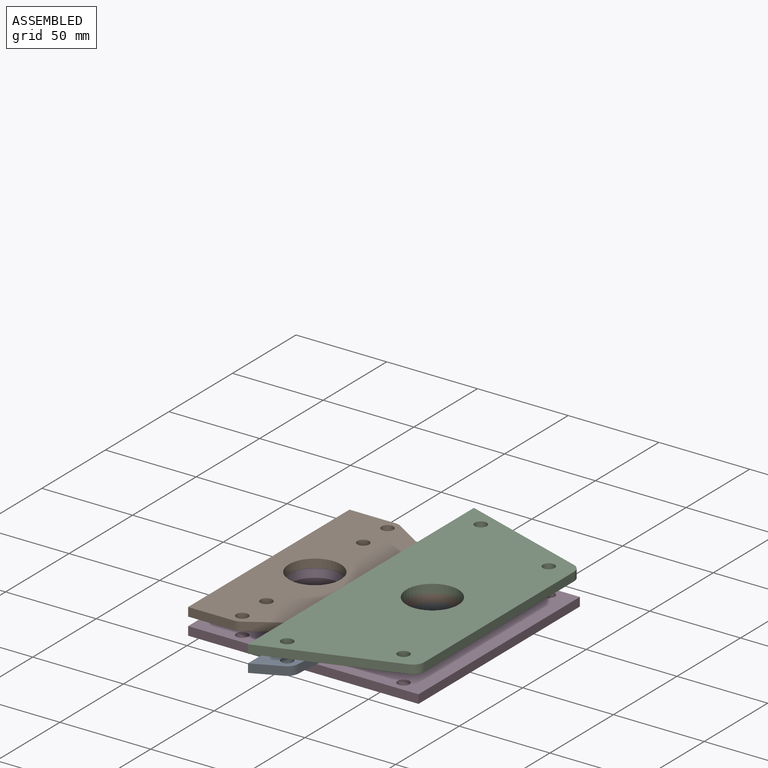
[diagram: assembled view]
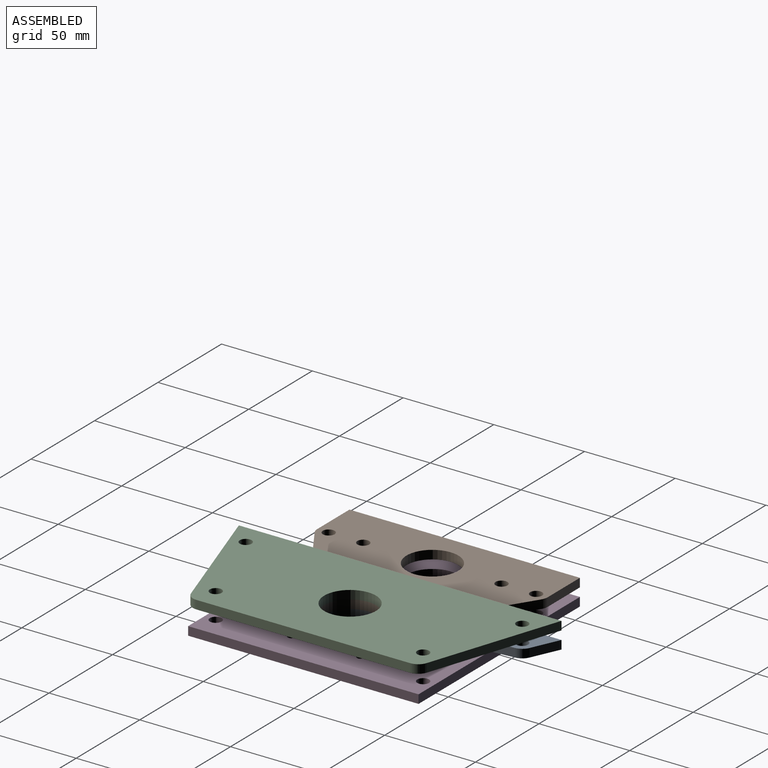
[diagram: assembled view, second angle]
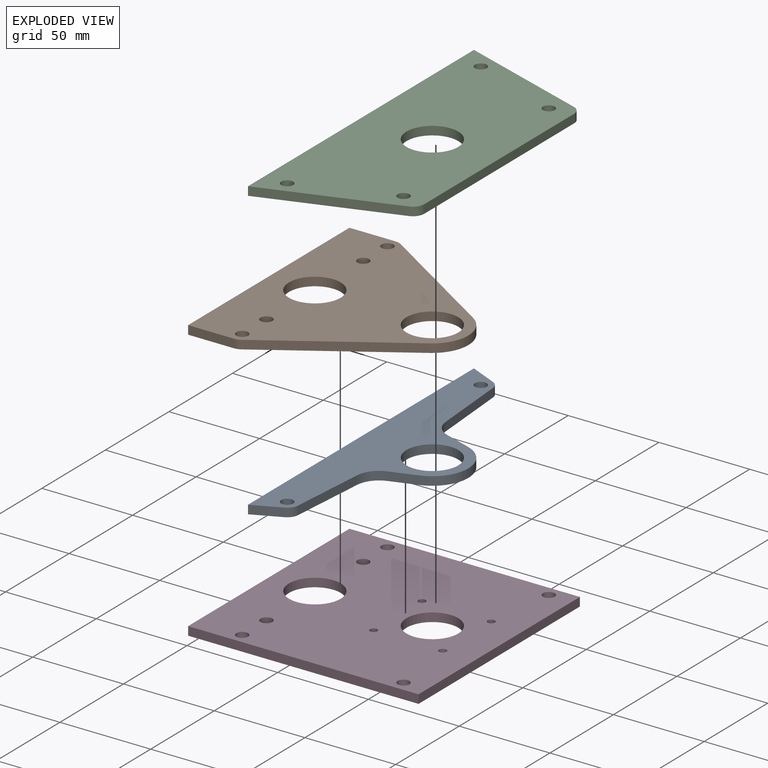
[diagram: exploded view]
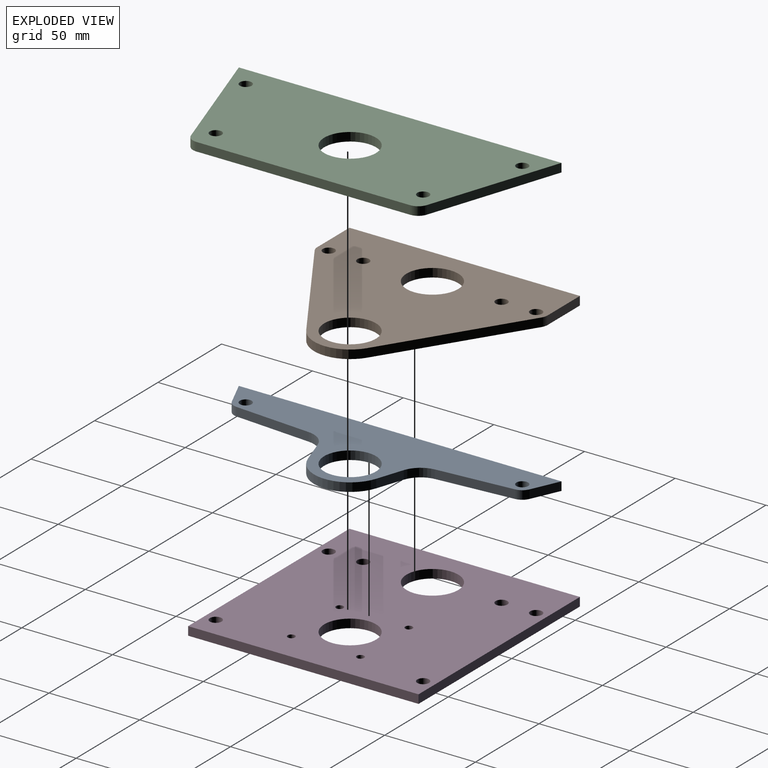
[diagram: exploded view, second angle]
ASSEMBLY  parts=4 mates=3
PART A: 17 faces, bbox 59.2x177.8x4.8 mm
  f0: plane 177.8x59.21mm, normal (0,0,1), area 4337.7mm2, adj f2,f3,f4,f5,f6,f7,f8,f9
  f1: plane 177.8x59.21mm, normal (0,0,-1), area 4337.7mm2, adj f2,f3,f4,f5,f6,f7,f8,f9
  f2: plane 177.8x4.76mm, normal (-1,0,0), area 846.8mm2, adj f0,f1,f6,f7
  f3: cylinder r=14.29mm len=28.58mm, axis (0,0,-1), area 427.5mm2, adj f0,f1
  f4: cylinder r=3.26mm len=6.53mm, axis (0,0,-1), area 97.7mm2, adj f0,f1
  f5: cylinder r=3.26mm len=6.53mm, axis (0,0,-1), area 97.7mm2, adj f0,f1
  f6: plane 15.31x6.91mm, normal (0.41,-0.91,0), area 80mm2, adj f0,f1,f2,f16
  f7: plane 15.31x6.91mm, normal (0.41,0.91,0), area 80mm2, adj f0,f1,f2,f8
  f8: cylinder r=6.35mm len=5.29mm, axis (0,0,1), area 32.3mm2, adj f0,f1,f7,f9
  f9: plane 41.94x4.76mm, normal (1,0.08,0), area 200.3mm2, adj f0,f1,f8,f10
  f10: cylinder r=12.7mm len=11.05mm, axis (0,0,1), area 70.8mm2, adj f0,f1,f9,f11
  f11: plane 14.66x4.89mm, normal (0.32,0.95,0), area 73.6mm2, adj f0,f1,f10,f12
  f12: cylinder r=19.84mm len=37.65mm, axis (0,0,1), area 236.1mm2, adj f0,f1,f11,f13
  f13: plane 14.66x4.89mm, normal (0.32,-0.95,0), area 73.6mm2, adj f0,f1,f12,f14
  f14: cylinder r=12.7mm len=11.05mm, axis (0,0,1), area 70.8mm2, adj f0,f1,f13,f15
  f15: plane 41.44x4.76mm, normal (1,-0.08,0), area 198mm2, adj f0,f1,f14,f16
  f16: cylinder r=6.38mm len=5.79mm, axis (0,0,1), area 34.7mm2, adj f0,f1,f6,f15
PART B: 16 faces, bbox 110x127x4.8 mm
  f0: plane 127x110.01mm, normal (0,0,1), area 8164.2mm2, adj f2,f3,f4,f5,f6,f7,f8,f9
  f1: plane 127x110.01mm, normal (0,0,-1), area 8164.2mm2, adj f2,f3,f4,f5,f6,f7,f8,f9
  f2: plane 127x4.76mm, normal (-1,0,0), area 604.8mm2, adj f0,f1,f3,f9
  f3: plane 25.4x4.76mm, normal (0,-1,0), area 121mm2, adj f0,f1,f2,f15
  f4: cylinder r=3.26mm len=6.53mm, axis (0,0,-1), area 97.7mm2, adj f0,f1
  f5: cylinder r=14.29mm len=28.58mm, axis (0,0,-1), area 427.5mm2, adj f0,f1
  f6: cylinder r=14.29mm len=28.58mm, axis (0,0,-1), area 427.5mm2, adj f0,f1
  f7: cylinder r=3.26mm len=6.53mm, axis (0,0,-1), area 97.7mm2, adj f0,f1
  f8: cylinder r=3.26mm len=6.53mm, axis (0,0,-1), area 97.7mm2, adj f0,f1
  f9: plane 25.4x4.76mm, normal (0,1,0), area 121mm2, adj f0,f1,f2,f11
  f10: cylinder r=3.26mm len=6.53mm, axis (0,0,-1), area 97.7mm2, adj f0,f1
  f11: cylinder r=6.35mm len=4.76mm, axis (0,0,1), area 17.1mm2, adj f0,f1,f9,f12
  f12: plane 72.01x45.76mm, normal (0.54,0.84,0), area 406.3mm2, adj f0,f1,f11,f13
  f13: cylinder r=19.84mm len=33.5mm, axis (0,0,1), area 189.9mm2, adj f0,f1,f12,f14
  f14: plane 72.01x45.76mm, normal (0.54,-0.84,0), area 406.3mm2, adj f0,f1,f13,f15
  f15: cylinder r=6.35mm len=4.76mm, axis (0,0,1), area 17.1mm2, adj f0,f1,f3,f14
PART C: 13 faces, bbox 76.2x177.8x4.8 mm
  f0: cylinder r=6.35mm len=6.02mm, axis (0,0,-1), area 37.8mm2, adj f1,f10,f11,f12
  f1: plane 71.86x23.95mm, normal (0.32,0.95,0), area 360.7mm2, adj f0,f2,f11,f12
  f2: plane 177.8x4.76mm, normal (-1,0,0), area 846.8mm2, adj f1,f3,f11,f12
  f3: plane 71.86x23.95mm, normal (0.32,-0.95,0), area 360.7mm2, adj f2,f4,f11,f12
  f4: cylinder r=6.35mm len=6.02mm, axis (0,0,-1), area 37.8mm2, adj f3,f10,f11,f12
  f5: cylinder r=14.29mm len=28.58mm, axis (0,0,-1), area 427.5mm2, adj f11,f12
  f6: cylinder r=3.26mm len=6.53mm, axis (0,0,-1), area 97.7mm2, adj f11,f12
  f7: cylinder r=3.26mm len=6.53mm, axis (0,0,-1), area 97.7mm2, adj f11,f12
  f8: cylinder r=3.26mm len=6.53mm, axis (0,0,-1), area 97.7mm2, adj f11,f12
  f9: cylinder r=3.26mm len=6.53mm, axis (0,0,-1), area 97.7mm2, adj f11,f12
  f10: plane 117.85x4.76mm, normal (1,0,0), area 561.2mm2, adj f0,f4,f11,f12
  f11: plane 177.8x76.2mm, normal (0,0,1), area 10829.9mm2, adj f0,f1,f2,f3,f4,f5,f6,f7
  f12: plane 177.8x76.2mm, normal (0,0,-1), area 10829.9mm2, adj f0,f1,f2,f3,f4,f5,f6,f7
PART D: 18 faces, bbox 127x127x4.8 mm
  f0: plane 127x4.76mm, normal (-1,0,0), area 604.8mm2, adj f1,f10,f12,f13
  f1: plane 127x4.76mm, normal (0,-1,0), area 604.8mm2, adj f0,f2,f12,f13
  f2: plane 127x4.76mm, normal (1,0,0), area 604.8mm2, adj f1,f10,f12,f13
  f3: cylinder r=3.26mm len=6.53mm, axis (0,0,-1), area 97.7mm2, adj f12,f13
  f4: cylinder r=3.26mm len=6.53mm, axis (0,0,-1), area 97.7mm2, adj f12,f13
  f5: cylinder r=3.26mm len=6.53mm, axis (0,0,-1), area 97.7mm2, adj f12,f13
  f6: cylinder r=14.29mm len=28.58mm, axis (0,0,-1), area 427.5mm2, adj f12,f13
  f7: cylinder r=14.29mm len=28.58mm, axis (0,0,-1), area 427.5mm2, adj f12,f13
  f8: cylinder r=3.26mm len=6.53mm, axis (0,0,-1), area 97.7mm2, adj f12,f13
  f9: cylinder r=3.26mm len=6.53mm, axis (0,0,-1), area 97.7mm2, adj f12,f13
  f10: plane 127x4.76mm, normal (0,1,0), area 604.8mm2, adj f0,f2,f12,f13
  f11: cylinder r=3.26mm len=6.53mm, axis (0,0,-1), area 97.7mm2, adj f12,f13
  f12: plane 127x127mm, normal (0,0,1), area 14594.4mm2, adj f0,f1,f2,f3,f4,f5,f6,f7
  f13: plane 127x127mm, normal (0,0,-1), area 14594.4mm2, adj f0,f1,f2,f3,f4,f5,f6,f7
  f14: cylinder r=2.02mm len=4.76mm, axis (0,0,-1), area 60.4mm2, adj f12,f13
  f15: cylinder r=2.02mm len=4.76mm, axis (0,0,-1), area 60.4mm2, adj f12,f13
  f16: cylinder r=2.02mm len=4.76mm, axis (0,0,-1), area 60.4mm2, adj f12,f13
  f17: cylinder r=2.02mm len=4.76mm, axis (0,0,-1), area 60.4mm2, adj f12,f13
PLACE A t=(11.9,-16.11,8.16)mm
PLACE B t=(11.9,-16.11,12.92)mm
PLACE C t=(11.9,-16.11,17.68)mm
PLACE D t=(11.9,-16.11,3.4)mm
MATE fastened C.f5 <-> B.f5  axis (0,0,-1) through (102.07,47.39,17.68)mm
MATE fastened B.f5 <-> A.f3  axis (0,0,-1) through (102.07,47.39,12.92)mm
MATE fastened A.f3 <-> D.f6  axis (0,0,-1) through (102.07,47.39,8.16)mm
